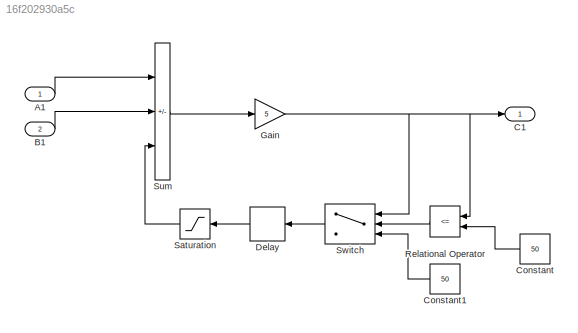
MODEL slx_16f202930a5c
KIND model
CONFIG AbsTol = auto
CONFIG EnableMultiTasking = off
CONFIG FixedStep = auto
CONFIG MaxStep = auto
CONFIG MinStep = auto
CONFIG RelTol = 1e-3
CONFIG SampleTimeConstraint = Unconstrained
CONFIG SolverName = VariableStepAuto
CONFIG StartTime = 0.0
CONFIG StopTime = 10.0
BLOCK [Inport] A1
BLOCK [Inport] B1
  Port = 2
BLOCK [Outport] C1
BLOCK [Constant] Constant
  NameLocation = top
  Value = 50
BLOCK [Constant] Constant1
  NameLocation = top
  Value = 50
BLOCK [Delay] Delay
  DelayLength = 1
  InitialCondition = 0
  InputPortMap = u0
  NameLocation = top
BLOCK [Gain] Gain
  Gain = 5
BLOCK [RelationalOperator] Relational Operator
  InputSameDT = off
  NameLocation = top
  Operator = <=
  OutDataTypeStr = boolean
  RndMeth = Simplest
BLOCK [Saturate] Saturation
  LowerLimit = -100
  NameLocation = top
  UpperLimit = 100
BLOCK [Sum] Sum
  IconShape = rectangular
  Inputs = |++-
BLOCK [Switch] Switch
  Criteria = u2 > Threshold
  InputSameDT = off
  NameLocation = top
  SaturateOnIntegerOverflow = off
LINE A1:1 -> Sum:1
LINE B1:1 -> Sum:2
LINE Constant1:1 -> Switch:3
LINE Constant:1 -> Relational Operator:2
LINE Delay:1 -> Saturation:1
NET Gain:1 -> C1:1, Relational Operator:1, Switch:1
LINE Relational Operator:1 -> Switch:2
LINE Saturation:1 -> Sum:3
LINE Sum:1 -> Gain:1
LINE Switch:1 -> Delay:1
note: NET lines group one-source signal fan-out (src -> all destinations, sorted); 1:1 wires keep LINE
